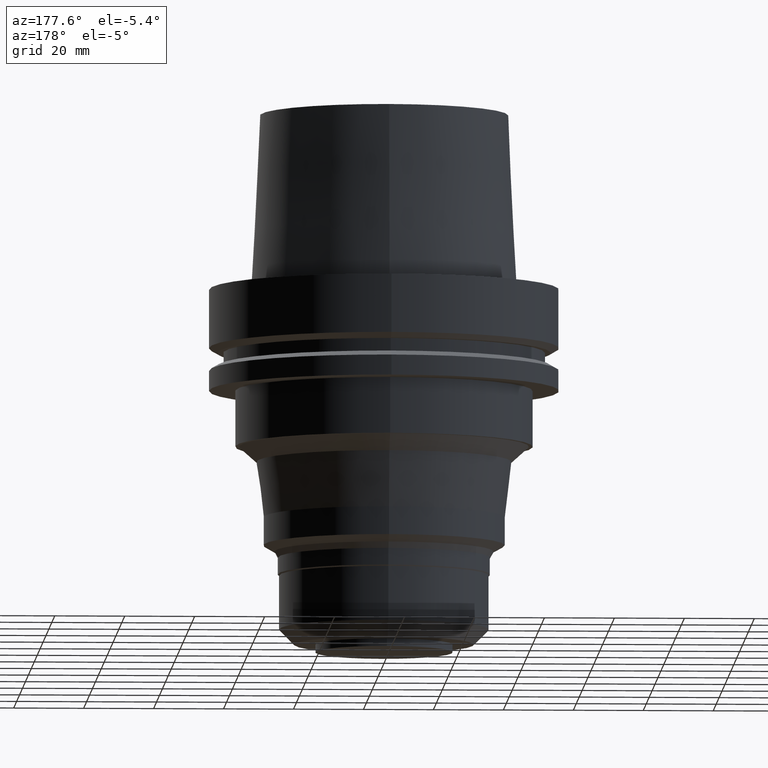
[diagram: clean part render]
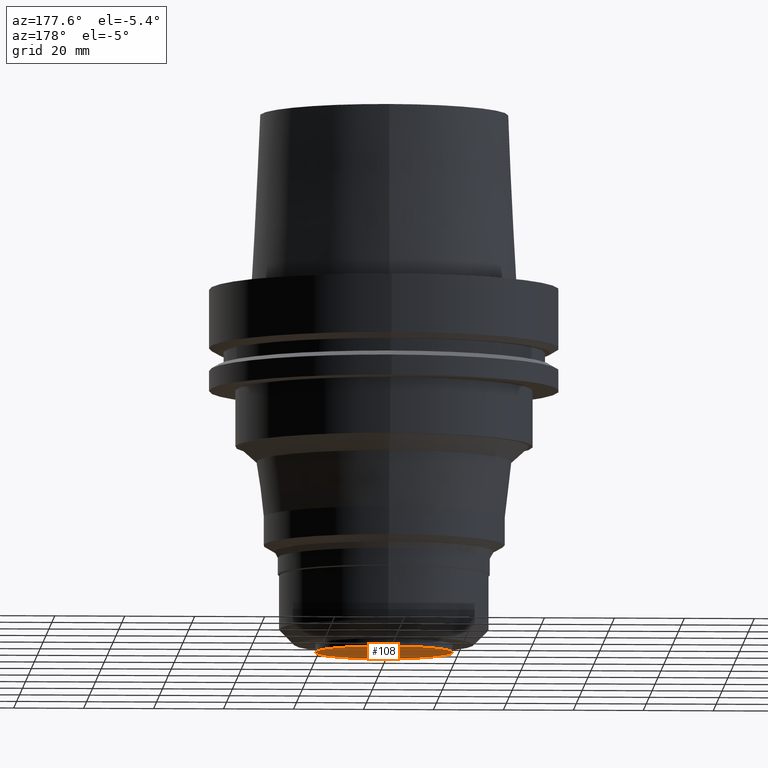
[diagram: same view with one face highlighted and labeled with its STEP entity id]
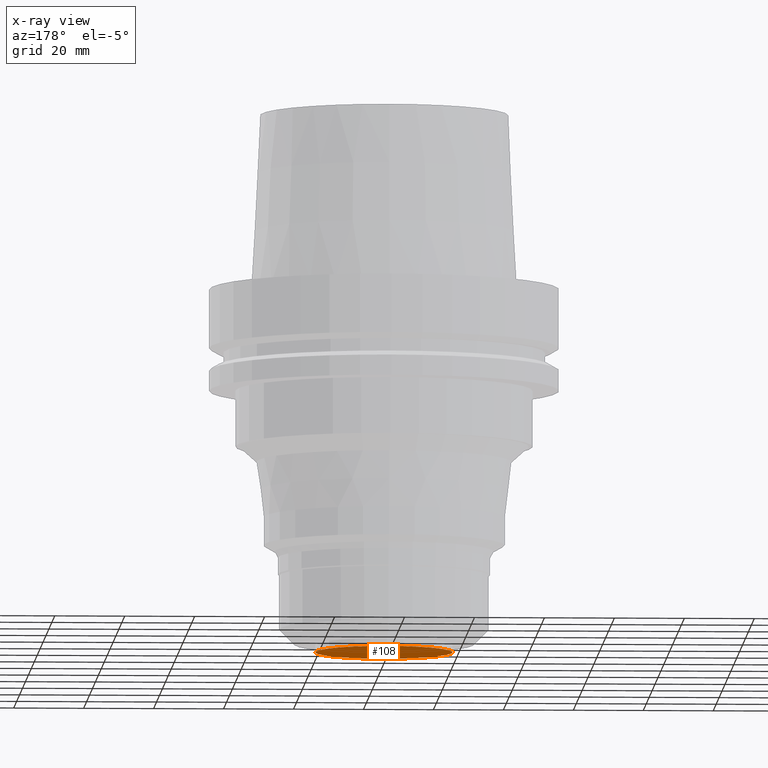
[diagram: x-ray of the same camera — body ghosted, the highlighted face saturated]
A machine part, auxiliary view. The second image highlights one B-rep face of the part: STEP entity #108.
The next image is the same camera in x-ray: the body ghosted, the highlighted face saturated — about 0% of this face is hidden behind the body in this view.
In plain terms, the highlighted planar face has unit normal (0, 0, -1).
Its self-contained STEP definition (entity closure, byte-faithful):
#108=ADVANCED_FACE('Unnamed[1]',(#269),#270,.T.);
#126=EDGE_CURVE('Unnamed[1]',#298,#298,#299,.T.);
#269=FACE_OUTER_BOUND('',#487,.T.);
#270=PLANE('',#488);
#298=VERTEX_POINT('',#523);
#299=CIRCLE('',#524,19.625107076497);
#487=EDGE_LOOP('',(#727));
#488=AXIS2_PLACEMENT_3D('',#728,#729,#730);
#523=CARTESIAN_POINT('',(6.36816335556624E-015,19.6251070764971,-104.0));
#524=AXIS2_PLACEMENT_3D('',#761,#762,#763);
#727=ORIENTED_EDGE('',*,*,#126,.T.);
#728=CARTESIAN_POINT('',(6.36816335556624E-015,9.81255353824853,-104.0));
#729=DIRECTION('',(6.12323399573677E-017,1.22464679914735E-016,-1.0));
#730=DIRECTION('',(-1.23259516440783E-032,1.0,1.22464679914735E-016));
#761=CARTESIAN_POINT('',(6.36816335556624E-015,1.27363267111325E-014,-104.0));
#762=DIRECTION('',(6.12323399573677E-017,1.22464679914735E-016,-1.0));
#763=DIRECTION('',(-1.23259516440783E-032,1.0,1.22464679914735E-016));